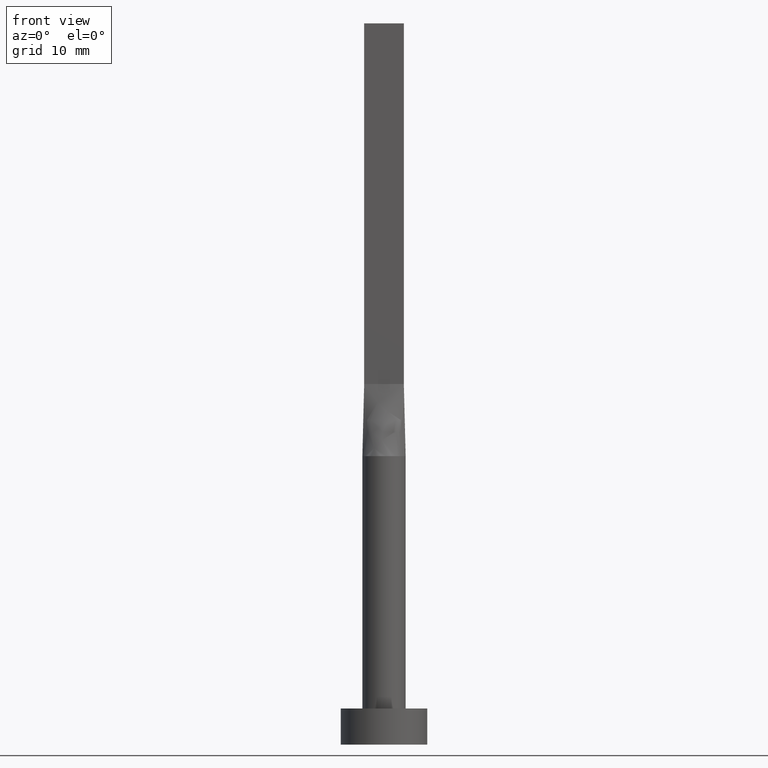
[diagram: clean part render]
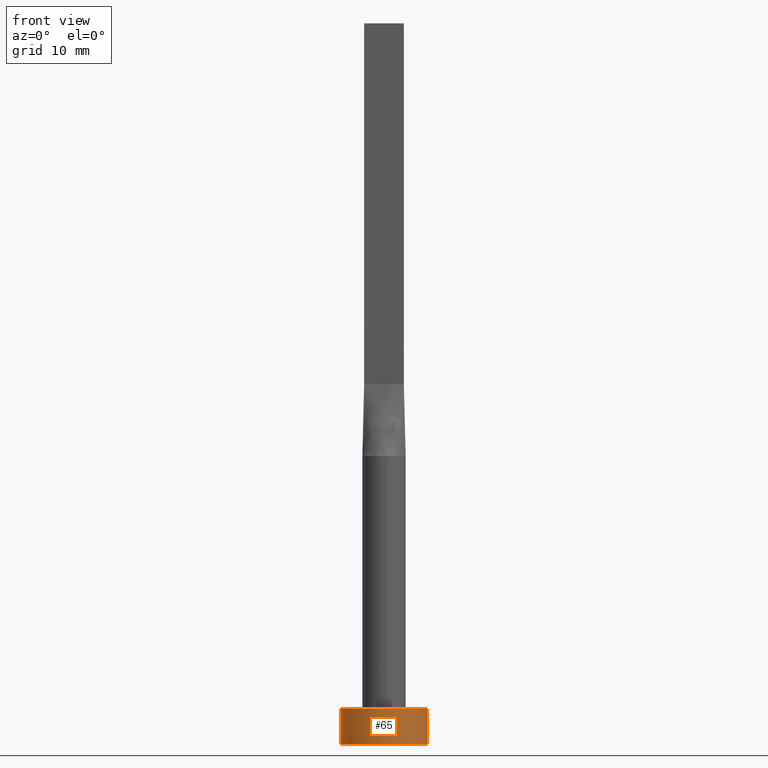
[diagram: same view with one face highlighted and labeled with its STEP entity id]
A machine part, front view. The second image highlights one B-rep face of the part: STEP entity #65.
In plain terms, the highlighted cylindrical surface (partial cylindrical patch) has radius 6 mm, axis along (-0, -0, -1).
Its self-contained STEP definition (entity closure, byte-faithful):
#3 = ORIENTED_EDGE ( 'NONE', *, *, #471, .F. ) ;
#17 = CARTESIAN_POINT ( 'NONE',  ( 0.000000000000000000, 0.000000000000000000, 5.000000000000000000 ) ) ;
#21 = CARTESIAN_POINT ( 'NONE',  ( 6.000000000000000888, 7.347880794884120722E-16, 5.000000000000000000 ) ) ;
#27 = CARTESIAN_POINT ( 'NONE',  ( 6.000000000000000888, 7.347880794884120722E-16, 5.000000000000000000 ) ) ;
#31 = CIRCLE ( 'NONE', #392, 6.000000000000000888 ) ;
#54 = DIRECTION ( 'NONE',  ( 1.000000000000000000, 0.000000000000000000, 0.000000000000000000 ) ) ;
#65 = ADVANCED_FACE ( 'NONE', ( #77 ), #125, .T. ) ;
#75 = DIRECTION ( 'NONE',  ( -1.000000000000000000, 0.000000000000000000, 0.000000000000000000 ) ) ;
#77 = FACE_OUTER_BOUND ( 'NONE', #527, .T. ) ;
#95 = DIRECTION ( 'NONE',  ( 0.000000000000000000, 0.000000000000000000, 1.000000000000000000 ) ) ;
#107 = DIRECTION ( 'NONE',  ( 0.000000000000000000, 0.000000000000000000, 1.000000000000000000 ) ) ;
#125 = CYLINDRICAL_SURFACE ( 'NONE', #467, 6.000000000000000888 ) ;
#129 = CARTESIAN_POINT ( 'NONE',  ( -6.000000000000000888, 0.000000000000000000, 5.000000000000000000 ) ) ;
#167 = DIRECTION ( 'NONE',  ( -0.000000000000000000, -0.000000000000000000, -1.000000000000000000 ) ) ;
#168 = VERTEX_POINT ( 'NONE', #27 ) ;
#188 = CARTESIAN_POINT ( 'NONE',  ( -6.000000000000000888, 0.000000000000000000, 0.000000000000000000 ) ) ;
#190 = EDGE_CURVE ( 'NONE', #334, #304, #322, .T. ) ;
#262 = EDGE_CURVE ( 'NONE', #304, #364, #369, .T. ) ;
#277 = VECTOR ( 'NONE', #533, 1000.000000000000000 ) ;
#304 = VERTEX_POINT ( 'NONE', #188 ) ;
#315 = ORIENTED_EDGE ( 'NONE', *, *, #355, .F. ) ;
#322 = LINE ( 'NONE', #129, #277 ) ;
#332 = CARTESIAN_POINT ( 'NONE',  ( -6.000000000000000888, 0.000000000000000000, 5.000000000000000000 ) ) ;
#334 = VERTEX_POINT ( 'NONE', #332 ) ;
#355 = EDGE_CURVE ( 'NONE', #334, #168, #31, .T. ) ;
#364 = VERTEX_POINT ( 'NONE', #370 ) ;
#369 = CIRCLE ( 'NONE', #413, 6.000000000000000888 ) ;
#370 = CARTESIAN_POINT ( 'NONE',  ( 6.000000000000000888, 7.347880794884120722E-16, 0.000000000000000000 ) ) ;
#377 = VECTOR ( 'NONE', #558, 1000.000000000000000 ) ;
#386 = LINE ( 'NONE', #21, #377 ) ;
#392 = AXIS2_PLACEMENT_3D ( 'NONE', #17, #95, #54 ) ;
#413 = AXIS2_PLACEMENT_3D ( 'NONE', #504, #107, #417 ) ;
#417 = DIRECTION ( 'NONE',  ( 1.000000000000000000, 0.000000000000000000, 0.000000000000000000 ) ) ;
#427 = ORIENTED_EDGE ( 'NONE', *, *, #190, .T. ) ;
#455 = ORIENTED_EDGE ( 'NONE', *, *, #262, .T. ) ;
#467 = AXIS2_PLACEMENT_3D ( 'NONE', #479, #167, #75 ) ;
#471 = EDGE_CURVE ( 'NONE', #168, #364, #386, .T. ) ;
#479 = CARTESIAN_POINT ( 'NONE',  ( 0.000000000000000000, 0.000000000000000000, 5.000000000000000000 ) ) ;
#504 = CARTESIAN_POINT ( 'NONE',  ( 0.000000000000000000, 0.000000000000000000, 0.000000000000000000 ) ) ;
#527 = EDGE_LOOP ( 'NONE', ( #3, #315, #427, #455 ) ) ;
#533 = DIRECTION ( 'NONE',  ( -0.000000000000000000, -0.000000000000000000, -1.000000000000000000 ) ) ;
#558 = DIRECTION ( 'NONE',  ( -0.000000000000000000, -0.000000000000000000, -1.000000000000000000 ) ) ;